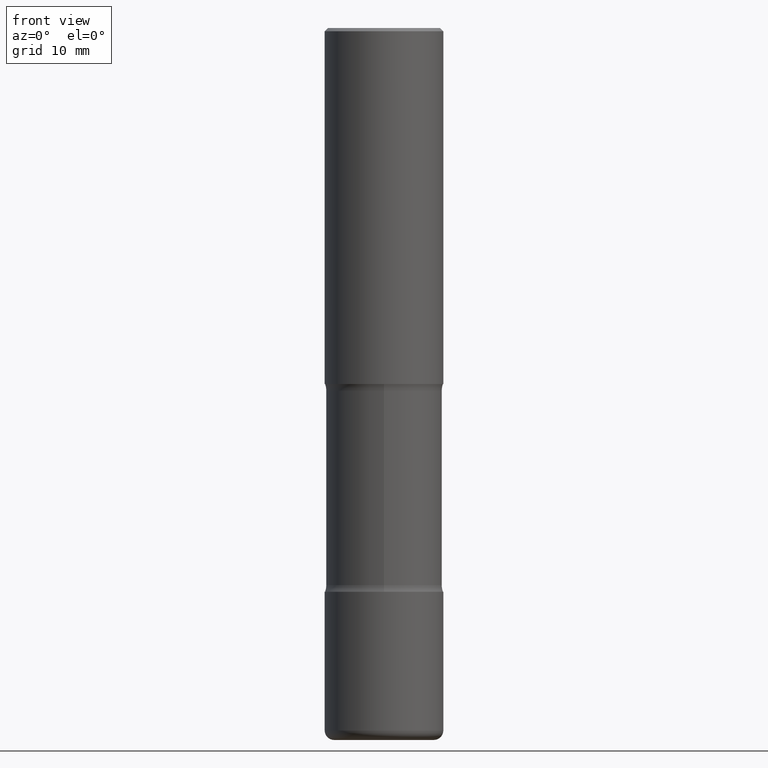
[diagram: clean part render]
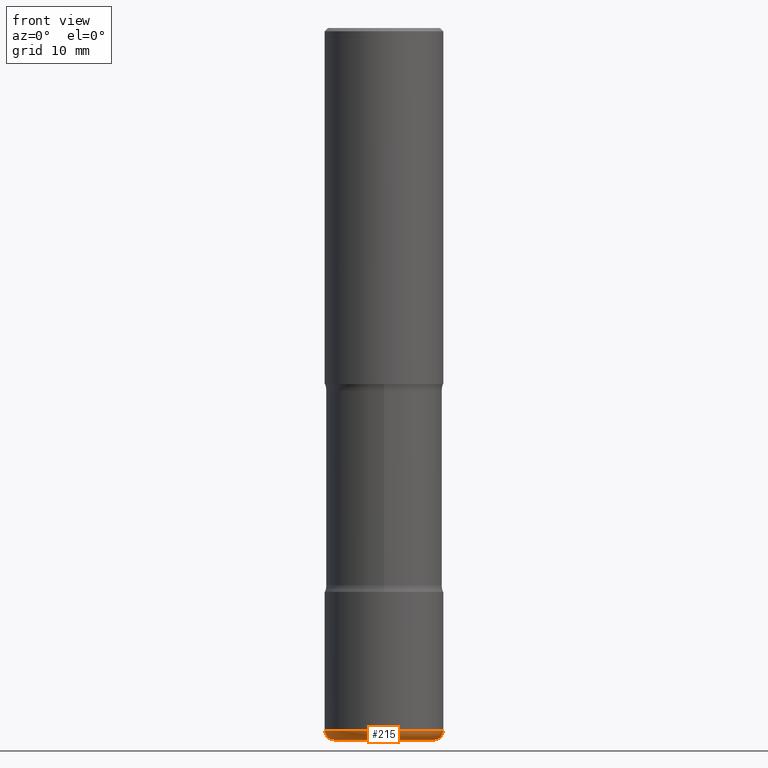
[diagram: same view with one face highlighted and labeled with its STEP entity id]
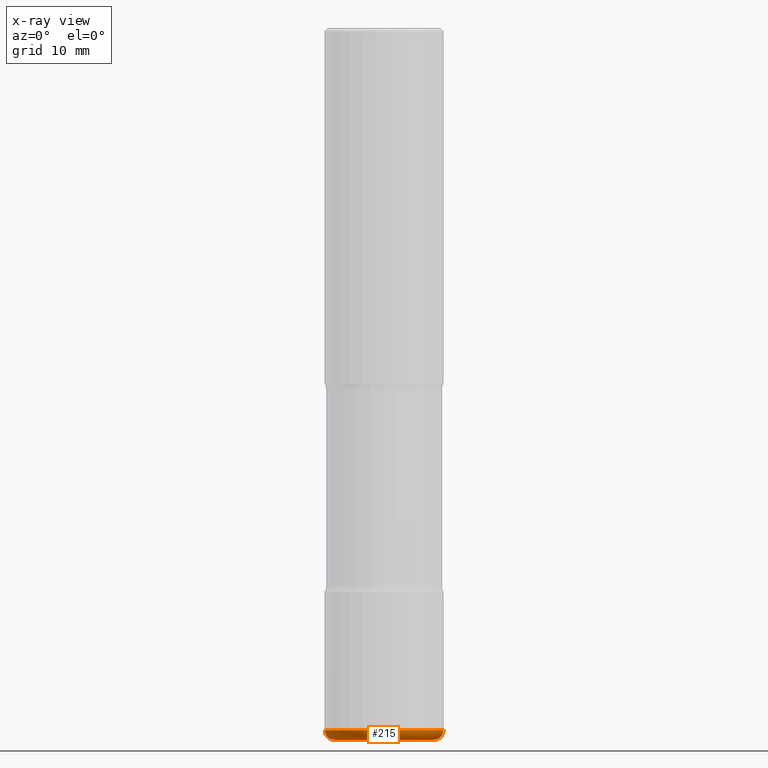
[diagram: x-ray of the same camera — body ghosted, the highlighted face saturated]
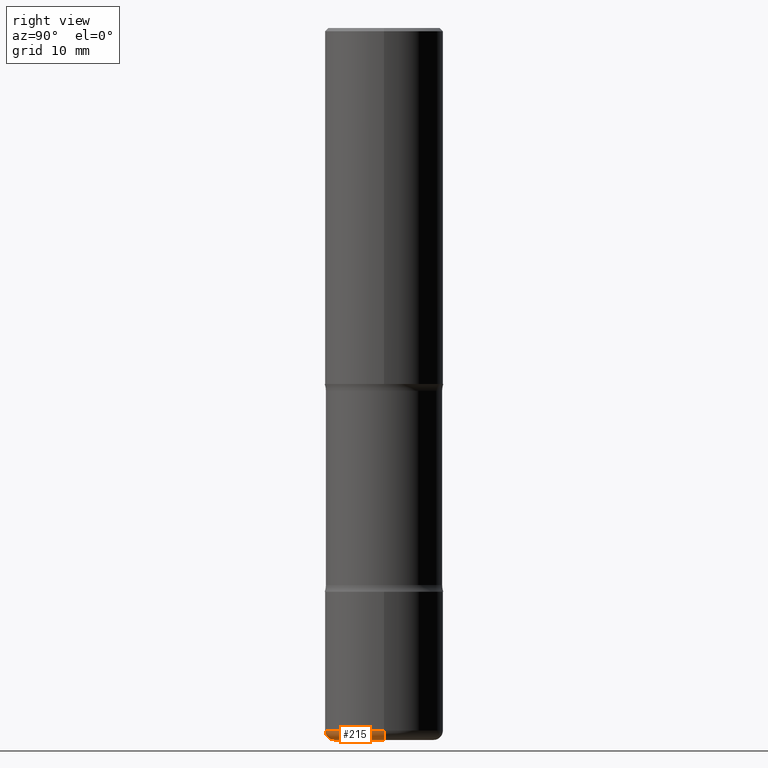
[diagram: same view with one face highlighted and labeled with its STEP entity id]
A machine part, front view. The second image highlights one B-rep face of the part: STEP entity #215.
The next image is the same camera in x-ray: the body ghosted, the highlighted face saturated — about 0% of this face is hidden behind the body in this view.
A second angle (right view) of the same face is appended — the face is thin or edge-on in the first view.
In plain terms, the highlighted toroidal blend (fillet) surface has major radius 8.001 mm and minor (blend) radius 1.524 mm.
Its self-contained STEP definition (entity closure, byte-faithful):
#17 = DIRECTION ( 'NONE',  ( 1.000000000000000000, -6.982962677686265922E-15, 0.000000000000000000 ) ) ;
#41 = VERTEX_POINT ( 'NONE', #185 ) ;
#86 = AXIS2_PLACEMENT_3D ( 'NONE', #331, #285, #327 ) ;
#88 = DIRECTION ( 'NONE',  ( -1.000000000000000000, 7.105427357601009747E-15, 0.000000000000000000 ) ) ;
#96 = AXIS2_PLACEMENT_3D ( 'NONE', #494, #401, #312 ) ;
#104 = EDGE_CURVE ( 'NONE', #41, #295, #276, .T. ) ;
#118 = AXIS2_PLACEMENT_3D ( 'NONE', #324, #236, #17 ) ;
#140 = ORIENTED_EDGE ( 'NONE', *, *, #104, .F. ) ;
#148 = FACE_OUTER_BOUND ( 'NONE', #169, .T. ) ;
#156 = CARTESIAN_POINT ( 'NONE',  ( -0.3750000000000001110, -1.283764188536319288E-14, -4.440000000000000391 ) ) ;
#169 = EDGE_LOOP ( 'NONE', ( #140, #498, #339, #291 ) ) ;
#173 = VERTEX_POINT ( 'NONE', #239 ) ;
#185 = CARTESIAN_POINT ( 'NONE',  ( -0.3150000000000001132, -1.315554914625651650E-14, -4.500000000000000000 ) ) ;
#196 = EDGE_CURVE ( 'NONE', #41, #302, #512, .T. ) ;
#215 = ADVANCED_FACE ( 'NONE', ( #148 ), #337, .T. ) ;
#229 = CARTESIAN_POINT ( 'NONE',  ( 0.3150000000000002798, -1.770181038793474354E-14, -4.440000000000000391 ) ) ;
#232 = CIRCLE ( 'NONE', #348, 0.05999999999999983818 ) ;
#236 = DIRECTION ( 'NONE',  ( -2.445468806185136597E-29, 3.491481338843145583E-15, 1.000000000000000000 ) ) ;
#239 = CARTESIAN_POINT ( 'NONE',  ( 0.3750000000000001110, -1.812078814859591702E-14, -4.440000000000000391 ) ) ;
#253 = CARTESIAN_POINT ( 'NONE',  ( 0.3150000000000001132, -1.791129926826533028E-14, -4.500000000000000000 ) ) ;
#276 = CIRCLE ( 'NONE', #528, 0.05999999999999983818 ) ;
#282 = DIRECTION ( 'NONE',  ( 1.000000000000000000, -6.982962677686287221E-15, 0.000000000000000000 ) ) ;
#285 = DIRECTION ( 'NONE',  ( -2.445468806185136597E-29, 3.491481338843145583E-15, 1.000000000000000000 ) ) ;
#291 = ORIENTED_EDGE ( 'NONE', *, *, #501, .F. ) ;
#295 = VERTEX_POINT ( 'NONE', #156 ) ;
#302 = VERTEX_POINT ( 'NONE', #253 ) ;
#312 = DIRECTION ( 'NONE',  ( 1.000000000000000000, -6.982962677686265922E-15, 4.883557194083113462E-29 ) ) ;
#324 = CARTESIAN_POINT ( 'NONE',  ( 1.100460962783311469E-28, -1.571166602479415690E-14, -4.500000000000000000 ) ) ;
#327 = DIRECTION ( 'NONE',  ( 1.000000000000000000, -6.982962677686260400E-15, 0.000000000000000000 ) ) ;
#331 = CARTESIAN_POINT ( 'NONE',  ( 1.085788149946200766E-28, -1.550217714446357016E-14, -4.440000000000000391 ) ) ;
#337 = TOROIDAL_SURFACE ( 'NONE', #96, 0.3150000000000002798, 0.05999999999999987288 ) ;
#339 = ORIENTED_EDGE ( 'NONE', *, *, #399, .T. ) ;
#348 = AXIS2_PLACEMENT_3D ( 'NONE', #229, #445, #282 ) ;
#399 = EDGE_CURVE ( 'NONE', #302, #173, #232, .T. ) ;
#401 = DIRECTION ( 'NONE',  ( -2.445468806185136597E-29, 3.491481338843145583E-15, 1.000000000000000000 ) ) ;
#428 = CARTESIAN_POINT ( 'NONE',  ( -0.3150000000000002798, -1.326396752681925022E-14, -4.440000000000000391 ) ) ;
#445 = DIRECTION ( 'NONE',  ( -6.982962677686266711E-15, -1.000000000000000000, 3.491481338843145583E-15 ) ) ;
#455 = CIRCLE ( 'NONE', #86, 0.3750000000000001110 ) ;
#494 = CARTESIAN_POINT ( 'NONE',  ( 1.085788149946200541E-28, -1.550217714446356700E-14, -4.440000000000000391 ) ) ;
#498 = ORIENTED_EDGE ( 'NONE', *, *, #196, .T. ) ;
#501 = EDGE_CURVE ( 'NONE', #295, #173, #455, .T. ) ;
#512 = CIRCLE ( 'NONE', #118, 0.3150000000000001132 ) ;
#518 = DIRECTION ( 'NONE',  ( 7.105427357601001859E-15, 1.000000000000000000, -3.491481338843145583E-15 ) ) ;
#528 = AXIS2_PLACEMENT_3D ( 'NONE', #428, #518, #88 ) ;